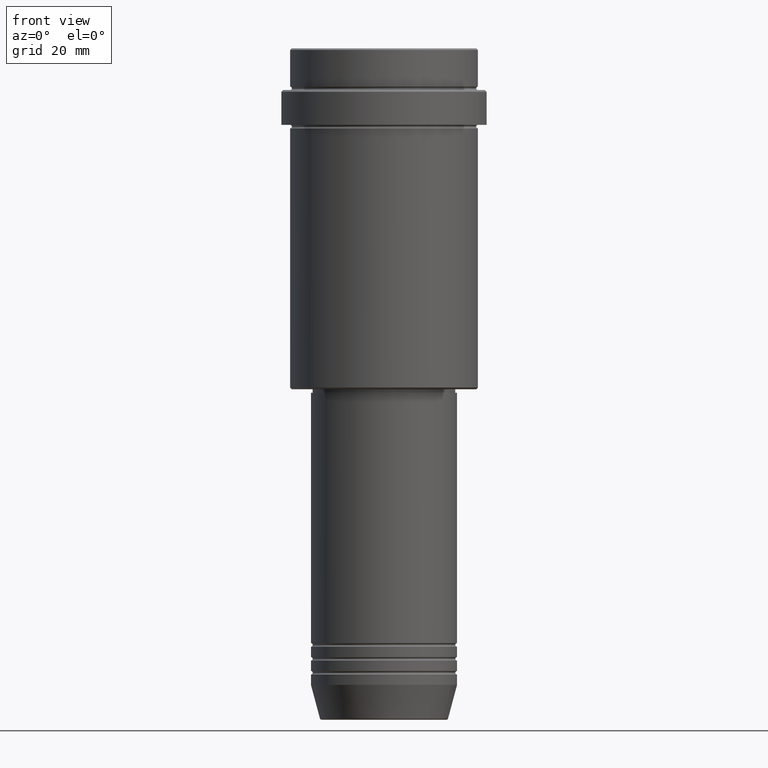
[diagram: clean part render]
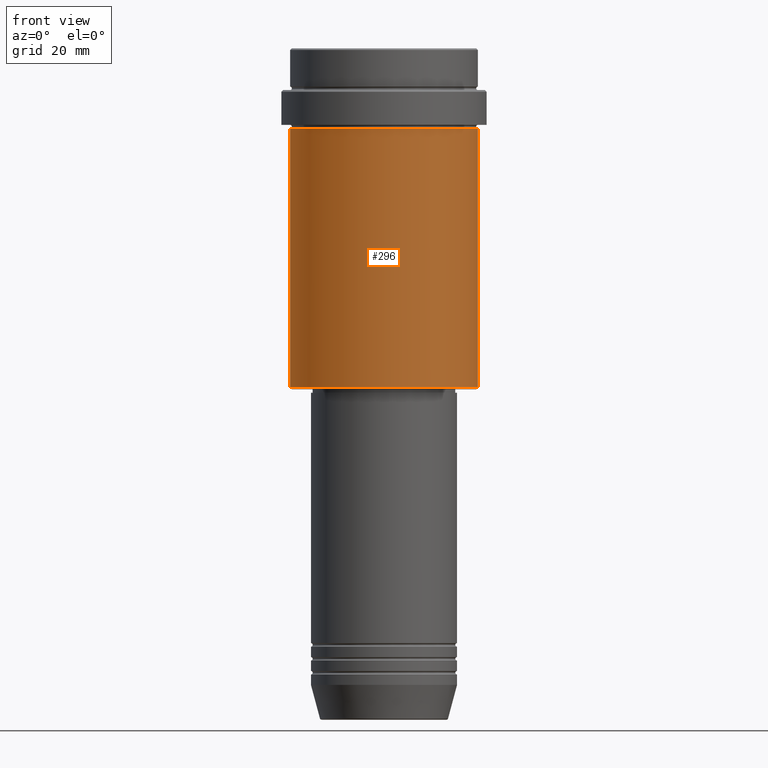
[diagram: same view with one face highlighted and labeled with its STEP entity id]
A machine part, front view. The second image highlights one B-rep face of the part: STEP entity #296.
In plain terms, the highlighted cylindrical surface (partial cylindrical patch) has radius 27 mm, axis along (-0, -0, 1).
Its self-contained STEP definition (entity closure, byte-faithful):
#79 = AXIS2_PLACEMENT_3D ( 'NONE', #909, #591, #818 ) ;
#96 = CARTESIAN_POINT ( 'NONE',  ( 0.000000000000000000, 0.000000000000000000, -97.49999999999997158 ) ) ;
#123 = DIRECTION ( 'NONE',  ( -1.000000000000000000, 0.000000000000000000, 0.000000000000000000 ) ) ;
#140 = VERTEX_POINT ( 'NONE', #322 ) ;
#156 = EDGE_LOOP ( 'NONE', ( #969, #607, #856, #1145 ) ) ;
#244 = VERTEX_POINT ( 'NONE', #1238 ) ;
#250 = EDGE_CURVE ( 'NONE', #244, #518, #517, .T. ) ;
#283 = DIRECTION ( 'NONE',  ( -0.000000000000000000, -0.000000000000000000, 1.000000000000000000 ) ) ;
#296 = ADVANCED_FACE ( 'NONE', ( #1354 ), #374, .T. ) ;
#322 = CARTESIAN_POINT ( 'NONE',  ( 27.00000000000000355, 0.000000000000000000, -97.49999999999997158 ) ) ;
#338 = EDGE_CURVE ( 'NONE', #847, #244, #514, .T. ) ;
#374 = CYLINDRICAL_SURFACE ( 'NONE', #399, 27.00000000000000355 ) ;
#378 = CIRCLE ( 'NONE', #1015, 27.00000000000000355 ) ;
#399 = AXIS2_PLACEMENT_3D ( 'NONE', #802, #1143, #1148 ) ;
#514 = LINE ( 'NONE', #1172, #1407 ) ;
#517 = CIRCLE ( 'NONE', #79, 27.00000000000000355 ) ;
#518 = VERTEX_POINT ( 'NONE', #1310 ) ;
#591 = DIRECTION ( 'NONE',  ( -0.000000000000000000, -0.000000000000000000, 1.000000000000000000 ) ) ;
#597 = EDGE_CURVE ( 'NONE', #847, #140, #378, .T. ) ;
#607 = ORIENTED_EDGE ( 'NONE', *, *, #597, .T. ) ;
#631 = DIRECTION ( 'NONE',  ( -0.000000000000000000, -0.000000000000000000, 1.000000000000000000 ) ) ;
#744 = CARTESIAN_POINT ( 'NONE',  ( 27.00000000000000355, 0.000000000000000000, 0.000000000000000000 ) ) ;
#793 = EDGE_CURVE ( 'NONE', #140, #518, #1147, .T. ) ;
#802 = CARTESIAN_POINT ( 'NONE',  ( 0.000000000000000000, 0.000000000000000000, 0.000000000000000000 ) ) ;
#818 = DIRECTION ( 'NONE',  ( 1.000000000000000000, 0.000000000000000000, 0.000000000000000000 ) ) ;
#847 = VERTEX_POINT ( 'NONE', #963 ) ;
#856 = ORIENTED_EDGE ( 'NONE', *, *, #793, .T. ) ;
#909 = CARTESIAN_POINT ( 'NONE',  ( 0.000000000000000000, 0.000000000000000000, -23.00000000000001421 ) ) ;
#963 = CARTESIAN_POINT ( 'NONE',  ( -27.00000000000000355, 3.306546357697854128E-15, -97.49999999999997158 ) ) ;
#969 = ORIENTED_EDGE ( 'NONE', *, *, #338, .F. ) ;
#1015 = AXIS2_PLACEMENT_3D ( 'NONE', #96, #1077, #123 ) ;
#1077 = DIRECTION ( 'NONE',  ( -0.000000000000000000, -0.000000000000000000, 1.000000000000000000 ) ) ;
#1081 = VECTOR ( 'NONE', #283, 1000.000000000000000 ) ;
#1143 = DIRECTION ( 'NONE',  ( -0.000000000000000000, -0.000000000000000000, 1.000000000000000000 ) ) ;
#1145 = ORIENTED_EDGE ( 'NONE', *, *, #250, .F. ) ;
#1147 = LINE ( 'NONE', #744, #1081 ) ;
#1148 = DIRECTION ( 'NONE',  ( 1.000000000000000000, 0.000000000000000000, 0.000000000000000000 ) ) ;
#1172 = CARTESIAN_POINT ( 'NONE',  ( -27.00000000000000355, 3.306546357697854128E-15, 0.000000000000000000 ) ) ;
#1238 = CARTESIAN_POINT ( 'NONE',  ( -27.00000000000000355, 3.306546357697854128E-15, -23.00000000000001421 ) ) ;
#1310 = CARTESIAN_POINT ( 'NONE',  ( 27.00000000000000355, 0.000000000000000000, -23.00000000000001421 ) ) ;
#1354 = FACE_OUTER_BOUND ( 'NONE', #156, .T. ) ;
#1407 = VECTOR ( 'NONE', #631, 1000.000000000000000 ) ;